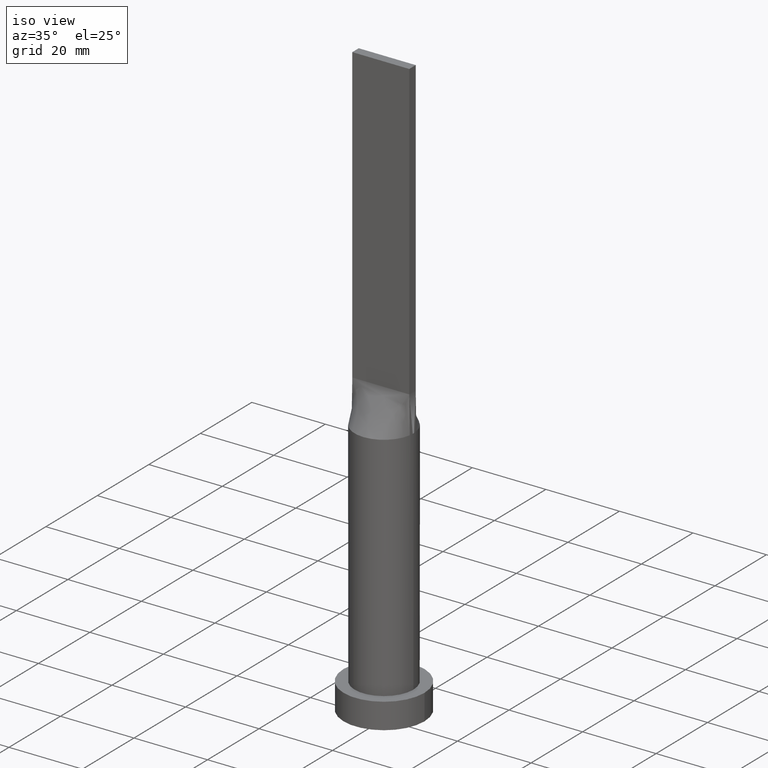
[diagram: clean part render]
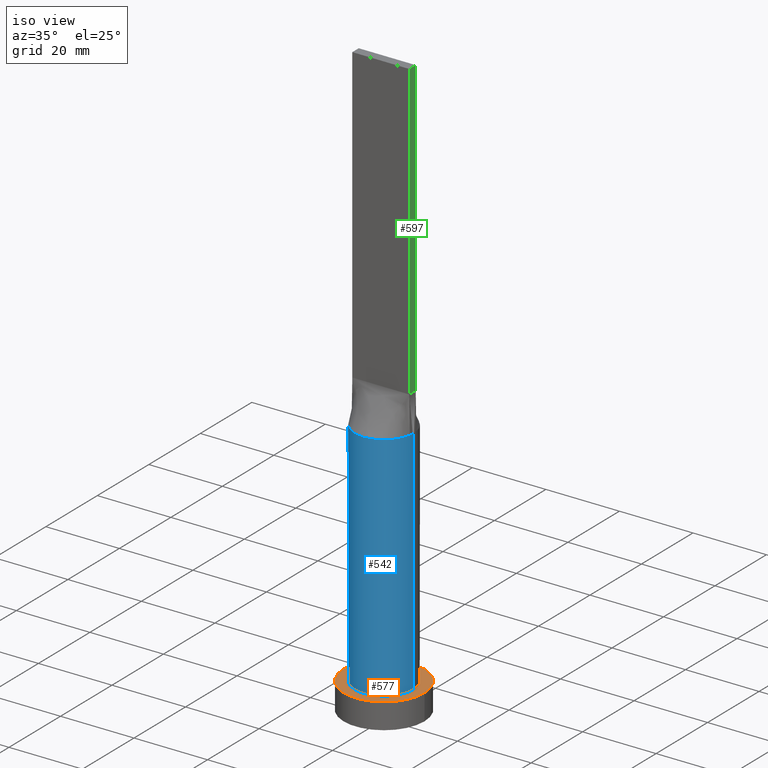
[diagram: same view with three faces highlighted in distinct colors, each labeled with its STEP entity id]
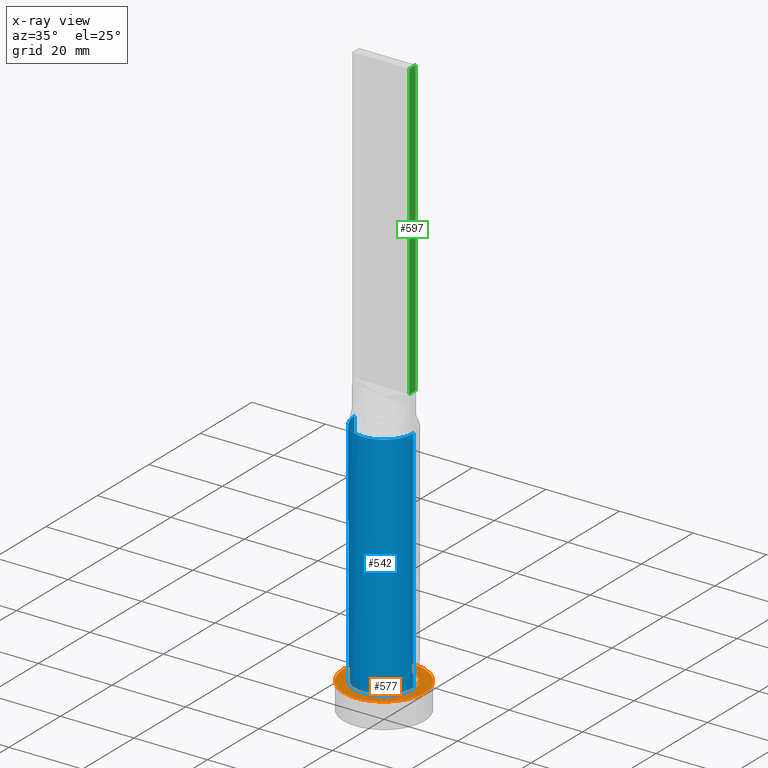
[diagram: x-ray of the same camera — body ghosted, the three highlighted faces saturated]
A machine part, iso view with three faces highlighted in distinct colors.
The next image is the same camera in x-ray (body ghosted, the three faces saturated) — at least one of them is partly hidden behind the body in this view.
Their STEP definitions:

[orange] entity #577 — the highlighted planar face has unit normal (0, 0, 1).
#1 = DIRECTION ( 'NONE',  ( 1.000000000000000000, 0.000000000000000000, 0.000000000000000000 ) ) ;
#3 = VERTEX_POINT ( 'NONE', #634 ) ;
#30 = CARTESIAN_POINT ( 'NONE',  ( -11.00000000000000000, 0.000000000000000000, 7.000000000000000000 ) ) ;
#43 = AXIS2_PLACEMENT_3D ( 'NONE', #522, #224, #572 ) ;
#47 = CARTESIAN_POINT ( 'NONE',  ( 11.00000000000000000, 1.347111479062088405E-15, 7.000000000000000000 ) ) ;
#61 = FACE_BOUND ( 'NONE', #381, .T. ) ;
#65 = AXIS2_PLACEMENT_3D ( 'NONE', #128, #626, #471 ) ;
#73 = PLANE ( 'NONE',  #43 ) ;
#74 = CARTESIAN_POINT ( 'NONE',  ( 0.000000000000000000, 0.000000000000000000, 7.000000000000000000 ) ) ;
#77 = AXIS2_PLACEMENT_3D ( 'NONE', #74, #628, #319 ) ;
#105 = EDGE_CURVE ( 'NONE', #106, #3, #133, .T. ) ;
#106 = VERTEX_POINT ( 'NONE', #122 ) ;
#122 = CARTESIAN_POINT ( 'NONE',  ( -8.000000000000000000, 0.000000000000000000, 7.000000000000000000 ) ) ;
#127 = CIRCLE ( 'NONE', #65, 11.00000000000000000 ) ;
#128 = CARTESIAN_POINT ( 'NONE',  ( 0.000000000000000000, 0.000000000000000000, 7.000000000000000000 ) ) ;
#133 = CIRCLE ( 'NONE', #469, 8.000000000000000000 ) ;
#189 = CIRCLE ( 'NONE', #356, 11.00000000000000000 ) ;
#224 = DIRECTION ( 'NONE',  ( 0.000000000000000000, 0.000000000000000000, 1.000000000000000000 ) ) ;
#231 = DIRECTION ( 'NONE',  ( 0.000000000000000000, 0.000000000000000000, 1.000000000000000000 ) ) ;
#246 = EDGE_LOOP ( 'NONE', ( #494, #315 ) ) ;
#273 = EDGE_CURVE ( 'NONE', #3, #106, #378, .T. ) ;
#303 = CARTESIAN_POINT ( 'NONE',  ( 0.000000000000000000, 0.000000000000000000, 7.000000000000000000 ) ) ;
#315 = ORIENTED_EDGE ( 'NONE', *, *, #608, .T. ) ;
#319 = DIRECTION ( 'NONE',  ( 1.000000000000000000, 0.000000000000000000, 0.000000000000000000 ) ) ;
#356 = AXIS2_PLACEMENT_3D ( 'NONE', #303, #496, #1 ) ;
#378 = CIRCLE ( 'NONE', #77, 8.000000000000000000 ) ;
#380 = EDGE_CURVE ( 'NONE', #631, #403, #189, .T. ) ;
#381 = EDGE_LOOP ( 'NONE', ( #493, #548 ) ) ;
#403 = VERTEX_POINT ( 'NONE', #47 ) ;
#469 = AXIS2_PLACEMENT_3D ( 'NONE', #622, #231, #532 ) ;
#471 = DIRECTION ( 'NONE',  ( 1.000000000000000000, 0.000000000000000000, 0.000000000000000000 ) ) ;
#493 = ORIENTED_EDGE ( 'NONE', *, *, #105, .F. ) ;
#494 = ORIENTED_EDGE ( 'NONE', *, *, #380, .T. ) ;
#496 = DIRECTION ( 'NONE',  ( 0.000000000000000000, 0.000000000000000000, 1.000000000000000000 ) ) ;
#522 = CARTESIAN_POINT ( 'NONE',  ( 0.000000000000000000, 0.000000000000000000, 7.000000000000000000 ) ) ;
#532 = DIRECTION ( 'NONE',  ( 1.000000000000000000, 0.000000000000000000, 0.000000000000000000 ) ) ;
#533 = FACE_OUTER_BOUND ( 'NONE', #246, .T. ) ;
#548 = ORIENTED_EDGE ( 'NONE', *, *, #273, .F. ) ;
#572 = DIRECTION ( 'NONE',  ( 1.000000000000000000, 0.000000000000000000, -0.000000000000000000 ) ) ;
#577 = ADVANCED_FACE ( 'NONE', ( #61, #533 ), #73, .T. ) ;
#608 = EDGE_CURVE ( 'NONE', #403, #631, #127, .T. ) ;
#622 = CARTESIAN_POINT ( 'NONE',  ( 0.000000000000000000, 0.000000000000000000, 7.000000000000000000 ) ) ;
#626 = DIRECTION ( 'NONE',  ( 0.000000000000000000, 0.000000000000000000, 1.000000000000000000 ) ) ;
#628 = DIRECTION ( 'NONE',  ( 0.000000000000000000, 0.000000000000000000, 1.000000000000000000 ) ) ;
#631 = VERTEX_POINT ( 'NONE', #30 ) ;
#634 = CARTESIAN_POINT ( 'NONE',  ( 8.000000000000000000, 9.797174393178825657E-16, 7.000000000000000000 ) ) ;

[blue] entity #542 — the highlighted cylindrical surface (edge-blend (fillet) strip) has radius 8 mm, axis along (-0, -0, -1).
#3 = VERTEX_POINT ( 'NONE', #634 ) ;
#10 = CARTESIAN_POINT ( 'NONE',  ( -8.000000000000000000, 0.000000000000000000, 70.00000000000000000 ) ) ;
#11 = DIRECTION ( 'NONE',  ( 1.000000000000000000, 1.776356839400250465E-15, 0.000000000000000000 ) ) ;
#27 = DIRECTION ( 'NONE',  ( 1.000000000000000000, 0.000000000000000000, 0.000000000000000000 ) ) ;
#58 = DIRECTION ( 'NONE',  ( -1.000000000000000000, 0.000000000000000000, 0.000000000000000000 ) ) ;
#92 = CARTESIAN_POINT ( 'NONE',  ( 7.999674421998661522, 1.953788361903730848E-15, 70.00000000000000000 ) ) ;
#95 = ORIENTED_EDGE ( 'NONE', *, *, #321, .T. ) ;
#105 = EDGE_CURVE ( 'NONE', #106, #3, #133, .T. ) ;
#106 = VERTEX_POINT ( 'NONE', #122 ) ;
#112 = CYLINDRICAL_SURFACE ( 'NONE', #514, 8.000000000000000000 ) ;
#117 = CARTESIAN_POINT ( 'NONE',  ( -7.999674421998661522, -1.996358676257538358E-15, 70.00000000000000000 ) ) ;
#122 = CARTESIAN_POINT ( 'NONE',  ( -8.000000000000000000, 0.000000000000000000, 7.000000000000000000 ) ) ;
#130 = EDGE_CURVE ( 'NONE', #541, #540, #219, .T. ) ;
#133 = CIRCLE ( 'NONE', #469, 8.000000000000000000 ) ;
#151 = VECTOR ( 'NONE', #268, 1000.000000000000000 ) ;
#167 = DIRECTION ( 'NONE',  ( 1.000000000000000000, 0.000000000000000000, 0.000000000000000000 ) ) ;
#184 = VECTOR ( 'NONE', #453, 1000.000000000000000 ) ;
#198 = EDGE_CURVE ( 'NONE', #540, #497, #293, .T. ) ;
#219 = CIRCLE ( 'NONE', #600, 8.000000000000000000 ) ;
#227 = DIRECTION ( 'NONE',  ( 0.000000000000000000, 0.000000000000000000, 1.000000000000000000 ) ) ;
#228 = EDGE_CURVE ( 'NONE', #305, #3, #636, .T. ) ;
#231 = DIRECTION ( 'NONE',  ( 0.000000000000000000, 0.000000000000000000, 1.000000000000000000 ) ) ;
#233 = CIRCLE ( 'NONE', #413, 8.000000000000000000 ) ;
#241 = CARTESIAN_POINT ( 'NONE',  ( 8.000000000000000000, 9.797174393178825657E-16, 70.00000000000000000 ) ) ;
#243 = EDGE_CURVE ( 'NONE', #497, #305, #233, .T. ) ;
#268 = DIRECTION ( 'NONE',  ( -0.000000000000000000, -0.000000000000000000, -1.000000000000000000 ) ) ;
#293 = CIRCLE ( 'NONE', #384, 8.000000000000000000 ) ;
#305 = VERTEX_POINT ( 'NONE', #92 ) ;
#316 = CARTESIAN_POINT ( 'NONE',  ( 0.000000000000000000, 0.000000000000000000, 70.00000000000000000 ) ) ;
#321 = EDGE_CURVE ( 'NONE', #541, #106, #455, .T. ) ;
#322 = CARTESIAN_POINT ( 'NONE',  ( 0.000000000000000000, 0.000000000000000000, 70.00000000000000000 ) ) ;
#328 = FACE_OUTER_BOUND ( 'NONE', #468, .T. ) ;
#384 = AXIS2_PLACEMENT_3D ( 'NONE', #417, #612, #167 ) ;
#413 = AXIS2_PLACEMENT_3D ( 'NONE', #316, #510, #11 ) ;
#417 = CARTESIAN_POINT ( 'NONE',  ( 0.000000000000000000, 0.000000000000000000, 70.00000000000000000 ) ) ;
#419 = CARTESIAN_POINT ( 'NONE',  ( -7.897940634034629426, -1.273861398824698732, 70.00000000000000000 ) ) ;
#453 = DIRECTION ( 'NONE',  ( -0.000000000000000000, -0.000000000000000000, -1.000000000000000000 ) ) ;
#455 = LINE ( 'NONE', #10, #151 ) ;
#468 = EDGE_LOOP ( 'NONE', ( #590, #604, #505, #470, #95, #639 ) ) ;
#469 = AXIS2_PLACEMENT_3D ( 'NONE', #622, #231, #532 ) ;
#470 = ORIENTED_EDGE ( 'NONE', *, *, #130, .F. ) ;
#475 = CARTESIAN_POINT ( 'NONE',  ( 0.000000000000000000, 0.000000000000000000, 70.00000000000000000 ) ) ;
#497 = VERTEX_POINT ( 'NONE', #610 ) ;
#505 = ORIENTED_EDGE ( 'NONE', *, *, #198, .F. ) ;
#510 = DIRECTION ( 'NONE',  ( 0.000000000000000000, 0.000000000000000000, 1.000000000000000000 ) ) ;
#514 = AXIS2_PLACEMENT_3D ( 'NONE', #322, #515, #58 ) ;
#515 = DIRECTION ( 'NONE',  ( -0.000000000000000000, -0.000000000000000000, -1.000000000000000000 ) ) ;
#532 = DIRECTION ( 'NONE',  ( 1.000000000000000000, 0.000000000000000000, 0.000000000000000000 ) ) ;
#540 = VERTEX_POINT ( 'NONE', #419 ) ;
#541 = VERTEX_POINT ( 'NONE', #117 ) ;
#542 = ADVANCED_FACE ( 'NONE', ( #328 ), #112, .T. ) ;
#590 = ORIENTED_EDGE ( 'NONE', *, *, #228, .F. ) ;
#600 = AXIS2_PLACEMENT_3D ( 'NONE', #475, #227, #27 ) ;
#604 = ORIENTED_EDGE ( 'NONE', *, *, #243, .F. ) ;
#610 = CARTESIAN_POINT ( 'NONE',  ( 7.897952327758385849, -1.273863293446191536, 70.00000000000000000 ) ) ;
#612 = DIRECTION ( 'NONE',  ( 0.000000000000000000, 0.000000000000000000, 1.000000000000000000 ) ) ;
#622 = CARTESIAN_POINT ( 'NONE',  ( 0.000000000000000000, 0.000000000000000000, 7.000000000000000000 ) ) ;
#634 = CARTESIAN_POINT ( 'NONE',  ( 8.000000000000000000, 9.797174393178825657E-16, 7.000000000000000000 ) ) ;
#636 = LINE ( 'NONE', #241, #184 ) ;
#639 = ORIENTED_EDGE ( 'NONE', *, *, #105, .T. ) ;

[green] entity #597 — the highlighted planar face has unit normal (-1, 0, 0).
#9 = LINE ( 'NONE', #171, #222 ) ;
#18 = CARTESIAN_POINT ( 'NONE',  ( 7.750000000000000000, -1.249999999999999778, 160.0000000000000000 ) ) ;
#29 = CARTESIAN_POINT ( 'NONE',  ( 7.750000000000000000, 1.250000000000000222, 160.0000000000000000 ) ) ;
#44 = ORIENTED_EDGE ( 'NONE', *, *, #637, .T. ) ;
#64 = CARTESIAN_POINT ( 'NONE',  ( 7.750000000000000000, -1.249999999999999778, 160.0000000000000000 ) ) ;
#70 = DIRECTION ( 'NONE',  ( -1.000000000000000000, 0.000000000000000000, 0.000000000000000000 ) ) ;
#118 = ORIENTED_EDGE ( 'NONE', *, *, #486, .T. ) ;
#131 = DIRECTION ( 'NONE',  ( -0.000000000000000000, -0.000000000000000000, -1.000000000000000000 ) ) ;
#160 = DIRECTION ( 'NONE',  ( -0.000000000000000000, 1.000000000000000000, -0.000000000000000000 ) ) ;
#162 = VERTEX_POINT ( 'NONE', #29 ) ;
#171 = CARTESIAN_POINT ( 'NONE',  ( 7.750000000000000000, 1.250000000000000222, 80.00000000000000000 ) ) ;
#182 = DIRECTION ( 'NONE',  ( 0.000000000000000000, 0.000000000000000000, 1.000000000000000000 ) ) ;
#222 = VECTOR ( 'NONE', #160, 1000.000000000000000 ) ;
#234 = AXIS2_PLACEMENT_3D ( 'NONE', #18, #70, #182 ) ;
#255 = CARTESIAN_POINT ( 'NONE',  ( 7.750000000000000000, -1.249999999999999778, 160.0000000000000000 ) ) ;
#256 = DIRECTION ( 'NONE',  ( -0.000000000000000000, -0.000000000000000000, -1.000000000000000000 ) ) ;
#267 = VECTOR ( 'NONE', #256, 1000.000000000000000 ) ;
#277 = FACE_OUTER_BOUND ( 'NONE', #396, .T. ) ;
#281 = EDGE_CURVE ( 'NONE', #162, #595, #498, .T. ) ;
#283 = PLANE ( 'NONE',  #234 ) ;
#308 = DIRECTION ( 'NONE',  ( 0.000000000000000000, 1.000000000000000000, 0.000000000000000000 ) ) ;
#394 = VECTOR ( 'NONE', #308, 1000.000000000000000 ) ;
#396 = EDGE_LOOP ( 'NONE', ( #118, #554, #512, #44 ) ) ;
#421 = CARTESIAN_POINT ( 'NONE',  ( 7.750000000000000000, -1.249999999999999778, 160.0000000000000000 ) ) ;
#430 = LINE ( 'NONE', #64, #613 ) ;
#462 = EDGE_CURVE ( 'NONE', #553, #162, #598, .T. ) ;
#483 = VERTEX_POINT ( 'NONE', #555 ) ;
#486 = EDGE_CURVE ( 'NONE', #483, #595, #9, .T. ) ;
#498 = LINE ( 'NONE', #502, #267 ) ;
#502 = CARTESIAN_POINT ( 'NONE',  ( 7.750000000000000000, 1.250000000000000222, 160.0000000000000000 ) ) ;
#512 = ORIENTED_EDGE ( 'NONE', *, *, #462, .F. ) ;
#553 = VERTEX_POINT ( 'NONE', #255 ) ;
#554 = ORIENTED_EDGE ( 'NONE', *, *, #281, .F. ) ;
#555 = CARTESIAN_POINT ( 'NONE',  ( 7.750000000000000000, -1.249999999999999778, 80.00000000000000000 ) ) ;
#595 = VERTEX_POINT ( 'NONE', #618 ) ;
#597 = ADVANCED_FACE ( 'NONE', ( #277 ), #283, .F. ) ;
#598 = LINE ( 'NONE', #421, #394 ) ;
#613 = VECTOR ( 'NONE', #131, 1000.000000000000000 ) ;
#618 = CARTESIAN_POINT ( 'NONE',  ( 7.750000000000000000, 1.250000000000000222, 80.00000000000000000 ) ) ;
#637 = EDGE_CURVE ( 'NONE', #553, #483, #430, .T. ) ;